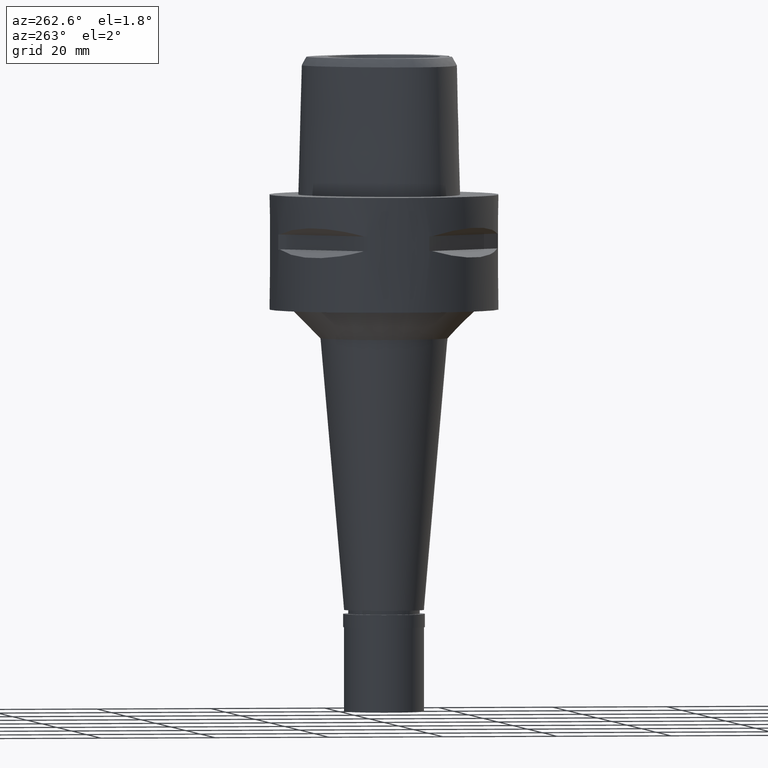
[diagram: clean part render]
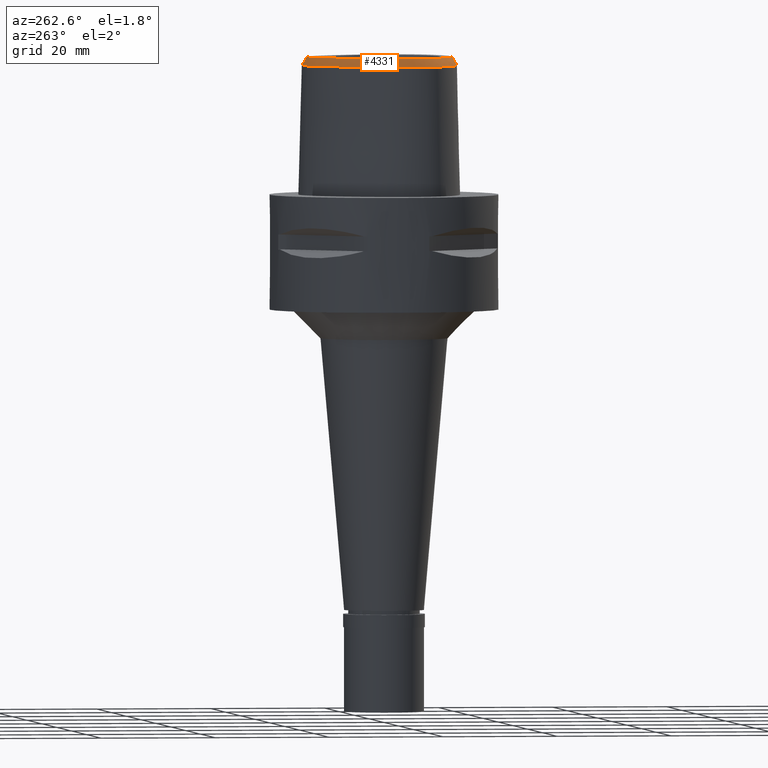
[diagram: same view with one face highlighted and labeled with its STEP entity id]
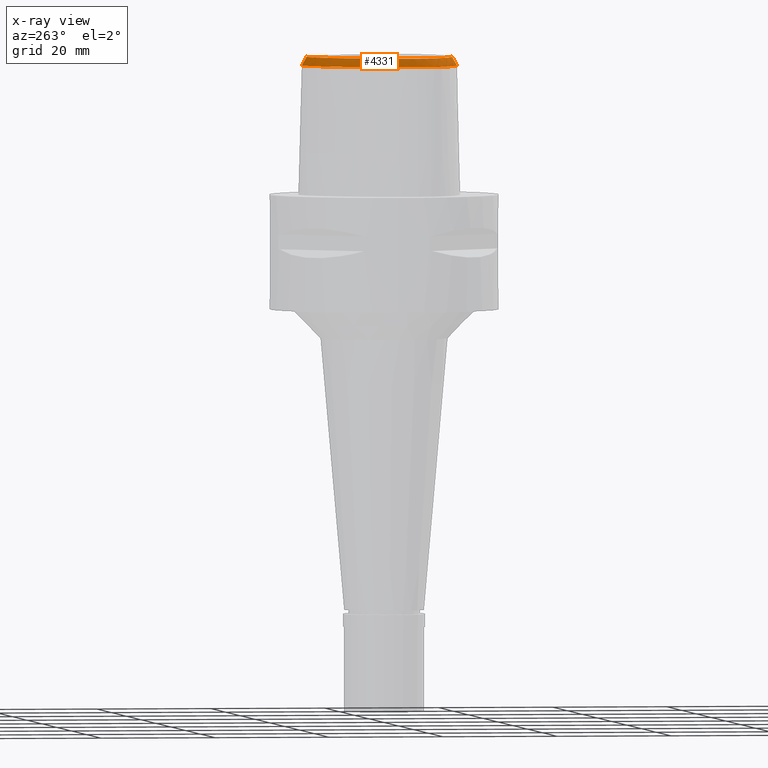
[diagram: x-ray of the same camera — body ghosted, the highlighted face saturated]
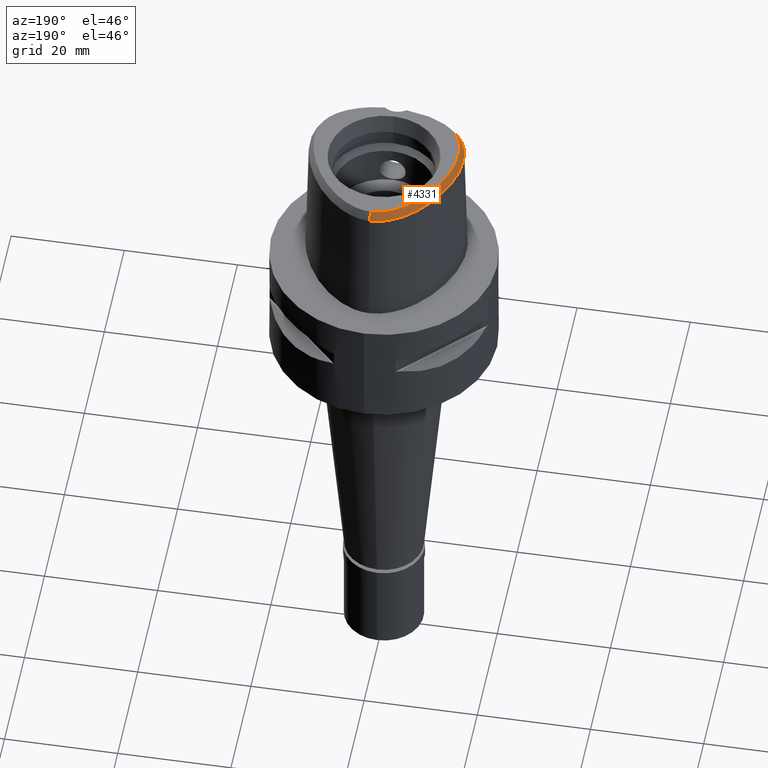
[diagram: same view with one face highlighted and labeled with its STEP entity id]
A machine part, auxiliary view. The second image highlights one B-rep face of the part: STEP entity #4331.
The next image is the same camera in x-ray: the body ghosted, the highlighted face saturated — about 0% of this face is hidden behind the body in this view.
A second angle (auxiliary view) of the same face is appended — the face is thin or edge-on in the first view.
In plain terms, the highlighted face is a freeform B-spline surface patch.
Its self-contained STEP definition (entity closure, byte-faithful):
#14 = CARTESIAN_POINT ( 'NONE',  ( -12.91689615255999968, -4.005728630794000544, 23.55038920272000169 ) ) ;
#30 = CARTESIAN_POINT ( 'NONE',  ( -10.73557940687000034, -8.489851609281000577, 23.55038907707999840 ) ) ;
#48 = CARTESIAN_POINT ( 'NONE',  ( -13.49620532111113391, -4.288887307617305744, 22.52071717950009599 ) ) ;
#52 = CARTESIAN_POINT ( 'NONE',  ( -13.29379043658999926, -5.427288830610999426, 22.39012510022000413 ) ) ;
#72 = CARTESIAN_POINT ( 'NONE',  ( -9.469781699632999761, -10.28825692441000150, 22.39012579534999858 ) ) ;
#92 = CARTESIAN_POINT ( 'NONE',  ( -10.68572801856999988, -9.410055897070000341, 22.39012497827000203 ) ) ;
#115 = CARTESIAN_POINT ( 'NONE',  ( -3.621331178449000099, -11.39559236640000073, 24.13052112445999953 ) ) ;
#123 = CARTESIAN_POINT ( 'NONE',  ( 0.2594542640720999827, 14.14463931645000017, 22.97025717801000155 ) ) ;
#141 = CARTESIAN_POINT ( 'NONE',  ( -2.018258286763999987, -12.25676355477000179, 22.97025772445000058 ) ) ;
#143 = CARTESIAN_POINT ( 'NONE',  ( -4.649494456245604646, 12.01569862248201304, 24.00000000000870770 ) ) ;
#147 = CARTESIAN_POINT ( 'NONE',  ( -0.5346987212134000078, 14.13446518989999845, 22.97025697266999700 ) ) ;
#161 = CARTESIAN_POINT ( 'NONE',  ( -12.25469206170719261, -5.716132091640868218, 24.00000000000425260 ) ) ;
#181 = CARTESIAN_POINT ( 'NONE',  ( -3.312010815206084313, 12.76928825342065643, 24.00000000000392930 ) ) ;
#187 = FACE_OUTER_BOUND ( 'NONE', #1372, .T. ) ;
#208 = CARTESIAN_POINT ( 'NONE',  ( -10.95406941132843492, -7.897563445516607494, 24.00000000000396838 ) ) ;
#212 = CARTESIAN_POINT ( 'NONE',  ( -2.902976913949000259, 13.57500030043000017, 22.97025667935999849 ) ) ;
#225 = CARTESIAN_POINT ( 'NONE',  ( -2.145202358384773689, -11.88058199930474501, 23.61561870660771589 ) ) ;
#235 = CARTESIAN_POINT ( 'NONE',  ( -2.371128645248000044, 14.10602832949999907, 22.39012459494000140 ) ) ;
#262 = CARTESIAN_POINT ( 'NONE',  ( -9.026545955030998769, 7.586230589718999440, 24.13052094538999981 ) ) ;
#287 = CARTESIAN_POINT ( 'NONE',  ( -6.259004304522999718, 11.11932302850000021, 23.55038928608000148 ) ) ;
#306 = CARTESIAN_POINT ( 'NONE',  ( -5.512255212595999154, 11.71834560157999938, 23.55038892139000239 ) ) ;
#325 = CARTESIAN_POINT ( 'NONE',  ( -12.34441932570999967, -7.560196396417000031, 22.39012480669000027 ) ) ;
#351 = CARTESIAN_POINT ( 'NONE',  ( -12.66686390959999997, -5.253351115346999833, 23.55038907752000199 ) ) ;
#372 = CARTESIAN_POINT ( 'NONE',  ( -3.014424021964061673, -12.39773933600387146, 22.52071717950009599 ) ) ;
#375 = CARTESIAN_POINT ( 'NONE',  ( -13.32590371727999923, -2.519785684007000093, 22.97025711291999883 ) ) ;
#386 = CARTESIAN_POINT ( 'NONE',  ( -6.946551618187000727E-11, 14.40001989798000182, 22.52071729252999788 ) ) ;
#397 = CARTESIAN_POINT ( 'NONE',  ( -12.49097388250999963, -4.592465801598999420, 24.13052107588999817 ) ) ;
#411 = B_SPLINE_CURVE_WITH_KNOTS ( 'NONE', 3,
 ( #4462, #1531, #491, #4116, #1935, #826, #1600, #462, #1574, #2955, #558, #2692, #1195, #208, #4093, #3373, #4386, #3049, #161, #3680, #1175, #2587, #2972, #1914, #3752, #4411, #4039, #2996, #2611, #4434, #1893, #4485, #1628, #1223, #1271, #3329, #2645, #4063, #920, #143, #852, #181, #3025, #1247, #2670, #3425, #3071, #1984, #1300 ),
 .UNSPECIFIED., .F., .F.,
 ( 4, 1, 1, 1, 1, 1, 1, 1, 1, 1, 1, 1, 1, 1, 1, 1, 1, 1, 1, 1, 1, 1, 1, 1, 1, 1, 1, 1, 1, 1, 1, 1, 1, 1, 1, 1, 1, 1, 1, 1, 1, 1, 1, 1, 1, 1, 4 ),
 ( 0.0000000000000000000, 0.009873886129200037942, 0.03187668865969994769, 0.05387949119019996846, 0.07588229372080002033, 0.09788509625140007220, 0.1198878987818999819, 0.1418907013124000027, 0.1638935038429000235, 0.1858963063735000754, 0.2078991089039999851, 0.2299019114346000370, 0.2519047139651000577, 0.2739075164956000785, 0.2959103190260999883, 0.3179131215567000401, 0.3399159240872999810, 0.3619187266178000018, 0.3839215291482999115, 0.4059243316788000433, 0.4279271342093999841, 0.4499299367398998939, 0.4719327392704999458, 0.4939355418009000465, 0.5159383443314999873, 0.5379411468621000392, 0.5599439493925999489, 0.5819467519232000008, 0.6039495544535999905, 0.6259523569842000423, 0.6479551595146999521, 0.6699579620453000040, 0.6919607645757999137, 0.7139635671063000455, 0.7359663696367999552, 0.7579691721674000071, 0.7799719746980000590, 0.8019747772284999687, 0.8239775797591000206, 0.8459803822895000103, 0.8679831848201000621, 0.8899859873505999719, 0.9119887898811600557, 0.9339915924116999335, 0.9559943949422300413, 0.9779971974727700301, 1.000000000000000000 ),
 .UNSPECIFIED. ) ;
#418 = CARTESIAN_POINT ( 'NONE',  ( -6.021703609490443476, 12.22251596750958313, 22.52071717950009599 ) ) ;
#422 = CARTESIAN_POINT ( 'NONE',  ( -13.61241537383000022, -1.635317129304999950, 22.39012500792000182 ) ) ;
#438 = CARTESIAN_POINT ( 'NONE',  ( -13.44334616472875332, -0.2854647376912409218, 22.52071717950009599 ) ) ;
#441 = CARTESIAN_POINT ( 'NONE',  ( -10.26853336994000010, -8.910859691284999329, 23.55038904346000095 ) ) ;
#455 = CARTESIAN_POINT ( 'NONE',  ( -12.82590901148203244, -6.531187915556634138, 22.52071717950009599 ) ) ;
#462 = CARTESIAN_POINT ( 'NONE',  ( -7.561120467871441875, -10.28345142432416637, 24.00000000000629541 ) ) ;
#484 = CARTESIAN_POINT ( 'NONE',  ( -1.700144406878999925, -12.28254757893000004, 22.97025773920000091 ) ) ;
#491 = CARTESIAN_POINT ( 'NONE',  ( -2.674008066187574251, -11.60894038318543231, 23.99999999999778311 ) ) ;
#494 = CARTESIAN_POINT ( 'NONE',  ( -0.05472977408874000332, 14.47833780472999798, 22.39012550636999777 ) ) ;
#511 = CARTESIAN_POINT ( 'NONE',  ( -6.801175342872999963, -10.87017341457999997, 23.55038941185999946 ) ) ;
#519 = CARTESIAN_POINT ( 'NONE',  ( -1.523573584765000044, 13.32517203437999953, 24.13052102811999688 ) ) ;
#532 = CARTESIAN_POINT ( 'NONE',  ( -7.931511078031999951, -11.10648330231000003, 22.39012467666999839 ) ) ;
#558 = CARTESIAN_POINT ( 'NONE',  ( -9.587006019867665430, -9.122502708651090586, 23.99999999999997868 ) ) ;
#563 = CARTESIAN_POINT ( 'NONE',  ( -10.63189210382000027, 5.647577708077999858, 23.55038908711000190 ) ) ;
#588 = CARTESIAN_POINT ( 'NONE',  ( -7.552228118048999406, 9.411001838818000564, 24.13052097709000066 ) ) ;
#613 = CARTESIAN_POINT ( 'NONE',  ( -12.30706036795000102, 3.647487044672999890, 22.39012509939000140 ) ) ;
#631 = CARTESIAN_POINT ( 'NONE',  ( -3.420482387832000093, 12.99684645227000068, 23.55039017689999881 ) ) ;
#656 = CARTESIAN_POINT ( 'NONE',  ( -3.280521755221999847, 12.70322860663999975, 24.13052074702000027 ) ) ;
#675 = CARTESIAN_POINT ( 'NONE',  ( -12.18582009569000135, -5.691361238067999651, 24.13052102439999658 ) ) ;
#697 = CARTESIAN_POINT ( 'NONE',  ( -12.01198931645999934, -8.032397562230999100, 22.39012575161999763 ) ) ;
#719 = CARTESIAN_POINT ( 'NONE',  ( -3.539803248252551882, 13.67924950902632908, 22.52071717950009599 ) ) ;
#722 = CARTESIAN_POINT ( 'NONE',  ( -12.79805583329999941, -5.911561163890000969, 22.97025741839999924 ) ) ;
#743 = CARTESIAN_POINT ( 'NONE',  ( -12.73455036606999968, 2.500906730922999976, 22.39012519899000253 ) ) ;
#755 = CARTESIAN_POINT ( 'NONE',  ( -12.06912915254240559, -7.841969072900782933, 22.52071717950009599 ) ) ;
#758 = CARTESIAN_POINT ( 'NONE',  ( -13.10417370210000065, -6.021661126801999941, 22.39012561538999790 ) ) ;
#782 = CARTESIAN_POINT ( 'NONE',  ( -12.68166860123735518, 2.767886241324079677, 22.52071717950009599 ) ) ;
#784 = CARTESIAN_POINT ( 'NONE',  ( -10.96173785637000009, -8.723672774605999436, 22.97025708788000031 ) ) ;
#793 = CARTESIAN_POINT ( 'NONE',  ( -1.597334650417999935, 13.64200731561000168, 23.55038920856000217 ) ) ;
#805 = CARTESIAN_POINT ( 'NONE',  ( -4.736458213768491632, -12.13940339377894695, 22.52071717950009599 ) ) ;
#807 = CARTESIAN_POINT ( 'NONE',  ( -8.954739086803998660, -9.459471398402000020, 24.13052100980999981 ) ) ;
#826 = CARTESIAN_POINT ( 'NONE',  ( -5.772139147996698583, -10.95484250004066062, 24.00000000000051514 ) ) ;
#848 = CARTESIAN_POINT ( 'NONE',  ( -10.11528326233000108, -9.854406487581998775, 22.39012601075999953 ) ) ;
#852 = CARTESIAN_POINT ( 'NONE',  ( -3.965203405002426074, 12.43107680024074213, 24.00000000000078515 ) ) ;
#857 = CARTESIAN_POINT ( 'NONE',  ( -1.093024944136000043, 14.07028295918999916, 22.97025705790000316 ) ) ;
#874 = CARTESIAN_POINT ( 'NONE',  ( -1.522585070594000056, -11.64361910773999931, 24.13052098510999954 ) ) ;
#900 = CARTESIAN_POINT ( 'NONE',  ( -2.665034832249999930, 12.96950803024999921, 24.13052111806999989 ) ) ;
#920 = CARTESIAN_POINT ( 'NONE',  ( -5.360644550568229860, 11.51697883926371446, 24.00000000000236255 ) ) ;
#926 = CARTESIAN_POINT ( 'NONE',  ( -11.50031765273000062, 4.668925267950999825, 22.97025789457000400 ) ) ;
#955 = CARTESIAN_POINT ( 'NONE',  ( -4.408493149500999131, 13.21731188525000000, 22.39013181342000181 ) ) ;
#977 = CARTESIAN_POINT ( 'NONE',  ( -4.609379665371999835, 11.95449901081999933, 24.13052068466999955 ) ) ;
#998 = CARTESIAN_POINT ( 'NONE',  ( -7.023124716592999306, 10.42308900067999922, 23.55038990566000123 ) ) ;
#1020 = CARTESIAN_POINT ( 'NONE',  ( -2.568703252653000479, -12.45023756080000155, 22.52071717950000007 ) ) ;
#1024 = CARTESIAN_POINT ( 'NONE',  ( -13.18665852454999943, -0.7364861514769999173, 22.97025706907999876 ) ) ;
#1042 = CARTESIAN_POINT ( 'NONE',  ( -11.75349225501000028, -7.834881162519999442, 22.97025750553000023 ) ) ;
#1063 = CARTESIAN_POINT ( 'NONE',  ( -11.38514937048999975, -8.281750740230000574, 22.97025721477000104 ) ) ;
#1088 = CARTESIAN_POINT ( 'NONE',  ( -12.96392189426000030, -1.686126341164000175, 23.55038905174000163 ) ) ;
#1110 = CARTESIAN_POINT ( 'NONE',  ( -13.01362516153000115, 0.2519059986234999937, 22.97025946772000182 ) ) ;
#1128 = CARTESIAN_POINT ( 'NONE',  ( -11.18789630585999895, -8.957493939931000071, 22.39012509866999778 ) ) ;
#1153 = CARTESIAN_POINT ( 'NONE',  ( -9.734544948727998914, -9.326911096693999426, 23.55038933181999994 ) ) ;
#1171 = CARTESIAN_POINT ( 'NONE',  ( -11.42690036616687088, -8.639965951773906028, 22.52071717950009599 ) ) ;
#1173 = CARTESIAN_POINT ( 'NONE',  ( -4.725144032494999813, -11.16498997077000155, 24.13052083658999791 ) ) ;
#1175 = CARTESIAN_POINT ( 'NONE',  ( -12.56273685367071380, -4.606827092194988538, 24.00000000000191847 ) ) ;
#1191 = CARTESIAN_POINT ( 'NONE',  ( -5.750775950445000007, -10.88486226082999941, 24.13052071816000321 ) ) ;
#1195 = CARTESIAN_POINT ( 'NONE',  ( -10.56030324369156226, -8.308636727330476646, 23.99999999999994671 ) ) ;
#1200 = CARTESIAN_POINT ( 'NONE',  ( -1.043222542498999816, 13.74879961953999974, 23.55038906400000087 ) ) ;
#1217 = CARTESIAN_POINT ( 'NONE',  ( -3.678012494620999995, -11.71581499487999878, 23.55038887673000048 ) ) ;
#1223 = CARTESIAN_POINT ( 'NONE',  ( -9.086067383144444065, 7.628776179867598373, 24.00000000000212452 ) ) ;
#1247 = CARTESIAN_POINT ( 'NONE',  ( -2.102339319505448056, 13.24427330329825558, 24.00000000000049027 ) ) ;
#1252 = CARTESIAN_POINT ( 'NONE',  ( -7.476353473284999218, 10.88960170228999935, 22.39012806545999723 ) ) ;
#1271 = CARTESIAN_POINT ( 'NONE',  ( -8.357232578962364045, 8.586563883648445028, 24.00000000000749623 ) ) ;
#1275 = CARTESIAN_POINT ( 'NONE',  ( -11.20140280495999896, 5.961674448596999909, 22.39012513453000253 ) ) ;
#1288 = ORIENTED_EDGE ( 'NONE', *, *, #1446, .F. ) ;
#1300 = CARTESIAN_POINT ( 'NONE',  ( -1.335434154418999929E-10, 13.57127880780999796, 24.00000000000000000 ) ) ;
#1307 = CARTESIAN_POINT ( 'NONE',  ( -8.806283535664000794, 8.949262491124001073, 22.97025691294999916 ) ) ;
#1334 = CARTESIAN_POINT ( 'NONE',  ( -12.11876203604000146, 2.291548344621999966, 23.55038910509999894 ) ) ;
#1356 = CARTESIAN_POINT ( 'NONE',  ( -2.080547148341000074, 13.17440626903000123, 24.13052110713000076 ) ) ;
#1372 = EDGE_LOOP ( 'NONE', ( #1621, #1288, #1723, #3205 ) ) ;
#1378 = CARTESIAN_POINT ( 'NONE',  ( -12.69527316021999930, 0.1854320980418000253, 23.55039011617999734 ) ) ;
#1403 = CARTESIAN_POINT ( 'NONE',  ( -11.49499519355000032, -7.637364762809999874, 23.55038925945000017 ) ) ;
#1427 = CARTESIAN_POINT ( 'NONE',  ( -12.49193796448999905, -5.801461200979000310, 23.55038922139999968 ) ) ;
#1446 = EDGE_CURVE ( 'NONE', #1563, #4221, #3606, .T. ) ;
#1449 = CARTESIAN_POINT ( 'NONE',  ( -11.79872620925000071, -7.205816340002000331, 23.55038899554000054 ) ) ;
#1465 = CARTESIAN_POINT ( 'NONE',  ( -6.946551618187000727E-11, 14.40001989798000182, 22.52071729252999788 ) ) ;
#1467 = CARTESIAN_POINT ( 'NONE',  ( -11.77163391964000105, -6.615736029525999484, 24.13052105050999785 ) ) ;
#1504 = CARTESIAN_POINT ( 'NONE',  ( -2.747055796328999655, -12.18137458420999941, 22.97025747561999864 ) ) ;
#1527 = CARTESIAN_POINT ( 'NONE',  ( -8.743617094457999173, -10.70733443268999885, 22.39012517583000061 ) ) ;
#1531 = CARTESIAN_POINT ( 'NONE',  ( -2.090687641573881539, -11.66928185012532815, 23.99999999999819522 ) ) ;
#1547 = CARTESIAN_POINT ( 'NONE',  ( -2.377475776531321472, -12.13328147874956109, 23.12252443310771355 ) ) ;
#1563 = VERTEX_POINT ( 'NONE', #2855 ) ;
#1570 = CARTESIAN_POINT ( 'NONE',  ( -7.531090943626000289, -10.21672388033000090, 24.13052110050999843 ) ) ;
#1574 = CARTESIAN_POINT ( 'NONE',  ( -8.320010339569014590, -9.910347637800986931, 24.00000000000661515 ) ) ;
#1596 = B_SPLINE_SURFACE_WITH_KNOTS ( 'NONE', 3, 3, ( 
 ( #4066, #1607, #2288, #3733 ),
 ( #2235, #3304, #123, #2959 ),
 ( #4389, #4001, #3683, #494 ),
 ( #3334, #3030, #147, #2977 ),
 ( #2547, #1200, #857, #3711 ),
 ( #519, #793, #2057, #3132 ),
 ( #1356, #3053, #4175, #235 ),
 ( #900, #2387, #212, #1724 ),
 ( #656, #631, #1683, #3507 ),
 ( #4488, #2774, #3483, #955 ),
 ( #977, #1656, #2339, #2035 ),
 ( #3076, #306, #4213, #3152 ),
 ( #1705, #287, #4538, #4559 ),
 ( #3456, #998, #3788, #1252 ),
 ( #588, #2673, #2412, #2011 ),
 ( #4195, #3832, #1307, #1632 ),
 ( #262, #1989, #2727, #3858 ),
 ( #2754, #4121, #3756, #2696 ),
 ( #2312, #563, #1966, #1275 ),
 ( #3406, #4146, #926, #3431 ),
 ( #4510, #2361, #3807, #613 ),
 ( #3108, #1334, #3198, #743 ),
 ( #3597, #2147, #2844, #2101 ),
 ( #4237, #1378, #1110, #4301 ),
 ( #3174, #2128, #1024, #2827 ),
 ( #2435, #1088, #3527, #422 ),
 ( #3969, #3950, #375, #2452 ),
 ( #3879, #1829, #2503, #3576 ),
 ( #3554, #14, #2891, #2800 ),
 ( #397, #4326, #2521, #4604 ),
 ( #1808, #351, #4579, #52 ),
 ( #675, #1427, #722, #758 ),
 ( #3899, #2163, #2869, #1789 ),
 ( #1467, #4276, #3614, #4256 ),
 ( #3239, #1449, #2077, #325 ),
 ( #1743, #1403, #1042, #697 ),
 ( #2473, #1766, #1063, #3926 ),
 ( #3219, #30, #784, #1128 ),
 ( #2952, #441, #2540, #92 ),
 ( #4059, #1153, #2255, #848 ),
 ( #807, #4430, #2907, #72 ),
 ( #4384, #3349, #1848, #1527 ),
 ( #1570, #3725, #4036, #532 ),
 ( #3323, #511, #2925, #4344 ),
 ( #1191, #3991, #2188, #2562 ),
 ( #1173, #1863, #1890, #3276 ),
 ( #115, #1217, #3297, #3676 ),
 ( #2584, #3639, #1504, #1911 ),
 ( #4363, #2279, #141, #4015 ),
 ( #2207, #3655, #484, #2606 ),
 ( #874, #3703, #2229, #4088 ) ),
 .UNSPECIFIED., .F., .F., .F.,
 ( 4, 1, 1, 1, 1, 1, 1, 1, 1, 1, 1, 1, 1, 1, 1, 1, 1, 1, 1, 1, 1, 1, 1, 1, 1, 1, 1, 1, 1, 1, 1, 1, 1, 1, 1, 1, 1, 1, 1, 1, 1, 1, 1, 1, 1, 1, 1, 1, 4 ),
 ( 4, 4 ),
 ( -0.01579924575333999798, 0.0000000000000000000, 0.02200280252723000110, 0.04400560505777000031, 0.06600840758830001098, 0.08801121011883999978, 0.1100140126494000004, 0.1320168151798999934, 0.1540196177104999897, 0.1760224202409000072, 0.1980252227715000035, 0.2200280253019999965, 0.2420308278325999929, 0.2640336303632000448, 0.2860364328937000100, 0.3080392354242000308, 0.3300420379546999960, 0.3520448404853000479, 0.3740476430157999577, 0.3960504455463999540, 0.4180532480767999992, 0.4400560506073999956, 0.4620588531379000163, 0.4840616556684999572, 0.5060644581990999535, 0.5280672607295000542, 0.5500700632601001061, 0.5720728657906000159, 0.5940756683211999567, 0.6160784708517000885, 0.6380812733821999982, 0.6600840759127000190, 0.6820868784432999599, 0.7040896809739000117, 0.7260924835043999215, 0.7480952860348999423, 0.7700980885653999630, 0.7921008910960000149, 0.8141036936264999246, 0.8361064961570999765, 0.8581092986875999973, 0.8801121012181000181, 0.9021149037485999278, 0.9241177062791999797, 0.9461205088098000315, 0.9681233113403000523, 0.9901261138707999621, 1.000000000000000000, 1.006872802233000019 ),
 ( -0.06560824655187999510, 1.065653435235000002 ),
 .UNSPECIFIED. ) ;
#1600 = CARTESIAN_POINT ( 'NONE',  ( -6.712679994719877641, -10.63416489131312659, 24.00000000001210765 ) ) ;
#1607 = CARTESIAN_POINT ( 'NONE',  ( 0.3755884573078000499, 13.81322689747999988, 23.55038901832000064 ) ) ;
#1621 = ORIENTED_EDGE ( 'NONE', *, *, #2354, .T. ) ;
#1628 = CARTESIAN_POINT ( 'NONE',  ( -9.776246037420351698, 6.601694411329492418, 24.00000000000850875 ) ) ;
#1632 = CARTESIAN_POINT ( 'NONE',  ( -9.059267869616999036, 9.153598022022000791, 22.39012482518000269 ) ) ;
#1656 = CARTESIAN_POINT ( 'NONE',  ( -4.787679414888999396, 12.22651527196000032, 23.55039039169999882 ) ) ;
#1683 = CARTESIAN_POINT ( 'NONE',  ( -3.560443020442999540, 13.29046429788999895, 22.97025960678000089 ) ) ;
#1705 = CARTESIAN_POINT ( 'NONE',  ( -6.047269996519998969, 10.87246714189999963, 24.13052100562000035 ) ) ;
#1723 = ORIENTED_EDGE ( 'NONE', *, *, #2920, .F. ) ;
#1724 = CARTESIAN_POINT ( 'NONE',  ( -3.021947954798000158, 13.87774643552000065, 22.39012445999999912 ) ) ;
#1743 = CARTESIAN_POINT ( 'NONE',  ( -11.23649813209000037, -7.439848363099000217, 24.13052101335999922 ) ) ;
#1766 = CARTESIAN_POINT ( 'NONE',  ( -11.14228945732999954, -8.065309008137999669, 23.55038913249000032 ) ) ;
#1786 = CARTESIAN_POINT ( 'NONE',  ( -2.568703252653000479, -12.45023756080000155, 22.52071717950000007 ) ) ;
#1789 = CARTESIAN_POINT ( 'NONE',  ( -12.88151079762000073, -6.572721333509000452, 22.39012527542999820 ) ) ;
#1808 = CARTESIAN_POINT ( 'NONE',  ( -12.35340064610000077, -5.166382257715999238, 24.13052106616999737 ) ) ;
#1829 = CARTESIAN_POINT ( 'NONE',  ( -12.98260992984999973, -3.295869790979000236, 23.55038938246999791 ) ) ;
#1848 = CARTESIAN_POINT ( 'NONE',  ( -8.590966830047999991, -10.42013352390999970, 22.97025713723999729 ) ) ;
#1863 = CARTESIAN_POINT ( 'NONE',  ( -4.800926594308999817, -11.48124356944999924, 23.55038986837000081 ) ) ;
#1890 = CARTESIAN_POINT ( 'NONE',  ( -4.876709156123999911, -11.79749716813000049, 22.97025890013999927 ) ) ;
#1893 = CARTESIAN_POINT ( 'NONE',  ( -10.97950574081230535, 4.420048049595853179, 24.00000000000877165 ) ) ;
#1908 = CARTESIAN_POINT ( 'NONE',  ( -2.568703252653000479, -12.45023756080000155, 22.52071717950000007 ) ) ;
#1911 = CARTESIAN_POINT ( 'NONE',  ( -2.788209102163999642, -12.50387002247000012, 22.39012570486000087 ) ) ;
#1914 = CARTESIAN_POINT ( 'NONE',  ( -12.74861612880535766, -2.526660231389460165, 24.00000000001223910 ) ) ;
#1935 = CARTESIAN_POINT ( 'NONE',  ( -4.742193981399983826, -11.23614232520928091, 24.00000000000717648 ) ) ;
#1966 = CARTESIAN_POINT ( 'NONE',  ( -10.91664745439000050, 5.804626078337000727, 22.97025711082000043 ) ) ;
#1984 = CARTESIAN_POINT ( 'NONE',  ( -0.1649659295968815553, 13.57127880779958851, 24.00000000000551381 ) ) ;
#1989 = CARTESIAN_POINT ( 'NONE',  ( -9.291103129389998827, 7.775334606002000548, 23.55038949356000089 ) ) ;
#2011 = CARTESIAN_POINT ( 'NONE',  ( -8.273245857719999208, 10.06823477092000019, 22.39012619892000089 ) ) ;
#2035 = CARTESIAN_POINT ( 'NONE',  ( -5.144278913925000474, 12.77054779424999964, 22.39012980577999912 ) ) ;
#2057 = CARTESIAN_POINT ( 'NONE',  ( -1.671095716071000048, 13.95884259682999939, 22.97025738898999947 ) ) ;
#2077 = CARTESIAN_POINT ( 'NONE',  ( -12.07157276747999930, -7.383006368210001114, 22.97025690111999907 ) ) ;
#2101 = CARTESIAN_POINT ( 'NONE',  ( -13.07543366182000000, 1.386436168884999987, 22.39012914491999950 ) ) ;
#2125 = CARTESIAN_POINT ( 'NONE',  ( -0.5039711950876220037, 14.40001990035042034, 22.52071717950009244 ) ) ;
#2128 = CARTESIAN_POINT ( 'NONE',  ( -12.86474258414000005, -0.7827894408407000126, 23.55038906888000128 ) ) ;
#2144 = CARTESIAN_POINT ( 'NONE',  ( -9.075996546496417849, -10.47368666962651496, 22.52071717950009599 ) ) ;
#2147 = CARTESIAN_POINT ( 'NONE',  ( -12.44813067247000049, 1.214579351180999911, 23.55039020713000042 ) ) ;
#2163 = CARTESIAN_POINT ( 'NONE',  ( -12.28770537913000105, -6.306754843174999792, 23.55038912646000071 ) ) ;
#2188 = CARTESIAN_POINT ( 'NONE',  ( -5.940683597445000075, -11.50694996716000063, 22.97025983444000019 ) ) ;
#2205 = CARTESIAN_POINT ( 'NONE',  ( -13.19588017073914266, -5.576003004572067212, 22.52071717950009599 ) ) ;
#2207 = CARTESIAN_POINT ( 'NONE',  ( -1.649618772199000105, -11.63448570839000062, 24.13052098372999765 ) ) ;
#2229 = CARTESIAN_POINT ( 'NONE',  ( -1.569185682592999953, -12.29196304801999950, 22.97025772833000090 ) ) ;
#2235 = CARTESIAN_POINT ( 'NONE',  ( 0.2354694207985000010, 13.49495979771999998, 24.13052105486999821 ) ) ;
#2255 = CARTESIAN_POINT ( 'NONE',  ( -9.924914105530998398, -9.590658792137999100, 22.97025767128999973 ) ) ;
#2279 = CARTESIAN_POINT ( 'NONE',  ( -1.988208977008000033, -11.93312022350999868, 23.55038935502999919 ) ) ;
#2288 = CARTESIAN_POINT ( 'NONE',  ( 0.3934966534366000079, 14.13772535562999977, 22.97025695327999628 ) ) ;
#2312 = CARTESIAN_POINT ( 'NONE',  ( -10.34713675323999915, 5.490529337817998901, 24.13052106338999891 ) ) ;
#2339 = CARTESIAN_POINT ( 'NONE',  ( -4.965979164406999935, 12.49853153311000042, 22.97026009873999897 ) ) ;
#2354 = EDGE_CURVE ( 'NONE', #3720, #4221, #411, .T. ) ;
#2361 = CARTESIAN_POINT ( 'NONE',  ( -11.70480535034000091, 3.401924666388000063, 23.55038907729000286 ) ) ;
#2387 = CARTESIAN_POINT ( 'NONE',  ( -2.784005873099999917, 13.27225416533999969, 23.55038889872000141 ) ) ;
#2412 = CARTESIAN_POINT ( 'NONE',  ( -8.032906611162999866, 9.849157126886000313, 22.97025779164000170 ) ) ;
#2435 = CARTESIAN_POINT ( 'NONE',  ( -12.63967515446999990, -1.711530947093999888, 24.13052107364999799 ) ) ;
#2452 = CARTESIAN_POINT ( 'NONE',  ( -13.65113343540000024, -2.515912732028999788, 22.39012513782000369 ) ) ;
#2473 = CARTESIAN_POINT ( 'NONE',  ( -10.89942954416999932, -7.848867276045000452, 24.13052105020999960 ) ) ;
#2503 = CARTESIAN_POINT ( 'NONE',  ( -13.30736251515999946, -3.314133812316999883, 22.97025778729000223 ) ) ;
#2521 = CARTESIAN_POINT ( 'NONE',  ( -13.12890914299999956, -4.720130159819999172, 22.97025701215000026 ) ) ;
#2540 = CARTESIAN_POINT ( 'NONE',  ( -10.47713069425999954, -9.160457794177998991, 22.97025701087000016 ) ) ;
#2547 = CARTESIAN_POINT ( 'NONE',  ( -0.9934201408627000296, 13.42731627989999943, 24.13052107009999858 ) ) ;
#2562 = CARTESIAN_POINT ( 'NONE',  ( -6.035637420945000109, -11.81799382033000079, 22.39012939257999690 ) ) ;
#2582 = CARTESIAN_POINT ( 'NONE',  ( -13.60847657048531723, -2.623199557594281028, 22.52071717950009599 ) ) ;
#2584 = CARTESIAN_POINT ( 'NONE',  ( -2.664749184658000036, -11.53638370770999977, 24.13052101714000131 ) ) ;
#2587 = CARTESIAN_POINT ( 'NONE',  ( -12.66679745937387658, -3.974058027850810859, 24.00000000000986589 ) ) ;
#2606 = CARTESIAN_POINT ( 'NONE',  ( -1.725407224218999946, -12.60657851420000064, 22.39012611694000299 ) ) ;
#2611 = CARTESIAN_POINT ( 'NONE',  ( -11.88013947725839969, 2.210420412498795173, 24.00000000000299849 ) ) ;
#2645 = CARTESIAN_POINT ( 'NONE',  ( -6.847495201775545048, 10.24231185838277902, 24.00000000000362732 ) ) ;
#2670 = CARTESIAN_POINT ( 'NONE',  ( -1.540168727109835656, 13.39645525873851462, 23.99999999999834088 ) ) ;
#2673 = CARTESIAN_POINT ( 'NONE',  ( -7.792567364605999636, 9.630079482851998662, 23.55038938436999985 ) ) ;
#2688 = CARTESIAN_POINT ( 'NONE',  ( -1.908902231482000111, -11.68567671431999955, 24.00000000000000000 ) ) ;
#2690 = VERTEX_POINT ( 'NONE', #1020 ) ;
#2692 = CARTESIAN_POINT ( 'NONE',  ( -10.10686734005285103, -8.717417447989452839, 24.00000000000783373 ) ) ;
#2696 = CARTESIAN_POINT ( 'NONE',  ( -10.53972617743999862, 7.082784187522000785, 22.39012580269000097 ) ) ;
#2727 = CARTESIAN_POINT ( 'NONE',  ( -9.555660303749998974, 7.964438622285000768, 22.97025804172000107 ) ) ;
#2754 = CARTESIAN_POINT ( 'NONE',  ( -9.714346667547999914, 6.562689920658999476, 24.13052100921999710 ) ) ;
#2774 = CARTESIAN_POINT ( 'NONE',  ( -4.089006758281000131, 12.65065900622999884, 23.55039095240000080 ) ) ;
#2800 = CARTESIAN_POINT ( 'NONE',  ( -13.56229974477999889, -4.087457650034999723, 22.39012554849999859 ) ) ;
#2827 = CARTESIAN_POINT ( 'NONE',  ( -13.50857446496000058, -0.6901828621133000441, 22.39012506929000068 ) ) ;
#2844 = CARTESIAN_POINT ( 'NONE',  ( -12.76178216714999891, 1.300507760033000171, 22.97025967603000041 ) ) ;
#2855 = CARTESIAN_POINT ( 'NONE',  ( -6.946551618187000727E-11, 14.40001989798000182, 22.52071729252999788 ) ) ;
#2869 = CARTESIAN_POINT ( 'NONE',  ( -12.58460808836999867, -6.439738088341999678, 22.97025720094000079 ) ) ;
#2883 = DIRECTION ( 'NONE',  ( -3.779049751668984788E-11, -0.4887572544032980359, 0.8724198222576960982 ) ) ;
#2891 = CARTESIAN_POINT ( 'NONE',  ( -13.23959794867000106, -4.046593140414000089, 22.97025737561000369 ) ) ;
#2905 = CARTESIAN_POINT ( 'NONE',  ( -12.48241503205640157, -7.206725678149306091, 22.52071717950009599 ) ) ;
#2907 = CARTESIAN_POINT ( 'NONE',  ( -9.298100828689999986, -10.01199508240999947, 22.97025753351000077 ) ) ;
#2920 = EDGE_CURVE ( 'NONE', #2690, #1563, #3474, .T. ) ;
#2925 = CARTESIAN_POINT ( 'NONE',  ( -6.915360696791999828, -11.17469469529000037, 22.97025785460000336 ) ) ;
#2952 = CARTESIAN_POINT ( 'NONE',  ( -10.05993604561999888, -8.661261588392999755, 24.13052107605999552 ) ) ;
#2955 = CARTESIAN_POINT ( 'NONE',  ( -8.993364728475006231, -9.521626202591734867, 24.00000000000454037 ) ) ;
#2959 = CARTESIAN_POINT ( 'NONE',  ( 0.2714466857089999907, 14.46947907580999981, 22.39012523957000056 ) ) ;
#2972 = CARTESIAN_POINT ( 'NONE',  ( -12.73092184452195674, -3.281714902708266379, 24.00000000000276046 ) ) ;
#2977 = CARTESIAN_POINT ( 'NONE',  ( -0.5598706276492999567, 14.45881985759000088, 22.39012491854999709 ) ) ;
#2996 = CARTESIAN_POINT ( 'NONE',  ( -12.20504609755164083, 1.147983555866235905, 24.00000000000074962 ) ) ;
#3025 = CARTESIAN_POINT ( 'NONE',  ( -2.691801546374031684, 13.03762140634739275, 24.00000000000154543 ) ) ;
#3030 = CARTESIAN_POINT ( 'NONE',  ( -0.5095268147773999168, 13.81011052220999957, 23.55038902679000046 ) ) ;
#3039 = CARTESIAN_POINT ( 'NONE',  ( -1.908902231482000111, -11.68567671431999955, 24.00000000000000000 ) ) ;
#3049 = CARTESIAN_POINT ( 'NONE',  ( -12.05760136210250799, -6.203690849627904846, 24.00000000001118039 ) ) ;
#3053 = CARTESIAN_POINT ( 'NONE',  ( -2.177407647309999916, 13.48494695584999903, 23.55038893640000097 ) ) ;
#3071 = CARTESIAN_POINT ( 'NONE',  ( -0.4900182128076595589, 13.55873082896230386, 24.00000000000808598 ) ) ;
#3076 = CARTESIAN_POINT ( 'NONE',  ( -5.316632307403999391, 11.45852250915000070, 24.13052111149000112 ) ) ;
#3108 = CARTESIAN_POINT ( 'NONE',  ( -11.81086787101999924, 2.186869151470999917, 24.13052105815999937 ) ) ;
#3132 = CARTESIAN_POINT ( 'NONE',  ( -1.744856781725000028, 14.27567787805999977, 22.39012556942000032 ) ) ;
#3152 = CARTESIAN_POINT ( 'NONE',  ( -5.903501022981000546, 12.23799178644000030, 22.39012454118000051 ) ) ;
#3174 = CARTESIAN_POINT ( 'NONE',  ( -12.54282664373000067, -0.8290927302043999969, 24.13052106866999935 ) ) ;
#3198 = CARTESIAN_POINT ( 'NONE',  ( -12.42665620105000102, 2.396227537771999927, 22.97025715203999852 ) ) ;
#3205 = ORIENTED_EDGE ( 'NONE', *, *, #3965, .F. ) ;
#3215 = CARTESIAN_POINT ( 'NONE',  ( -10.46238780241939281, -9.543613000371241384, 22.52071717950009599 ) ) ;
#3219 = CARTESIAN_POINT ( 'NONE',  ( -10.50942095737000059, -8.256030443954998077, 24.13052106629000093 ) ) ;
#3239 = CARTESIAN_POINT ( 'NONE',  ( -11.52587965100999945, -7.028626311793999548, 24.13052108996999934 ) ) ;
#3276 = CARTESIAN_POINT ( 'NONE',  ( -4.952491717937999915, -12.11375076681999907, 22.39012793191000128 ) ) ;
#3293 = CARTESIAN_POINT ( 'NONE',  ( -8.737913808019980522, 9.598635897784784987, 22.52071717950009599 ) ) ;
#3297 = CARTESIAN_POINT ( 'NONE',  ( -3.734693810793999980, -12.03603762336000038, 22.97025662900999876 ) ) ;
#3304 = CARTESIAN_POINT ( 'NONE',  ( 0.2474618424353000057, 13.81979955707999963, 23.55038911643999811 ) ) ;
#3323 = CARTESIAN_POINT ( 'NONE',  ( -6.686989988953000008, -10.56565213386000046, 24.13052096912000266 ) ) ;
#3329 = CARTESIAN_POINT ( 'NONE',  ( -7.606300872724576223, 9.460291049258893636, 24.00000000000397549 ) ) ;
#3334 = CARTESIAN_POINT ( 'NONE',  ( -0.4843549083414999679, 13.48575585452999981, 24.13052108089999592 ) ) ;
#3349 = CARTESIAN_POINT ( 'NONE',  ( -8.438316565638000810, -10.13293261511999965, 23.55038909864000019 ) ) ;
#3357 = CARTESIAN_POINT ( 'NONE',  ( -1.335434154418999929E-10, 13.57127880780999796, 24.00000000000000000 ) ) ;
#3373 = CARTESIAN_POINT ( 'NONE',  ( -11.58726606716591689, -7.068491431883646037, 24.00000000000700950 ) ) ;
#3406 = CARTESIAN_POINT ( 'NONE',  ( -10.91349224824000075, 4.388502583700999438, 24.13052096405000313 ) ) ;
#3425 = CARTESIAN_POINT ( 'NONE',  ( -1.004624940264025934, 13.49964524824664558, 24.00000000000978417 ) ) ;
#3431 = CARTESIAN_POINT ( 'NONE',  ( -11.79373035498000100, 4.809136610076000018, 22.39012635982999910 ) ) ;
#3456 = CARTESIAN_POINT ( 'NONE',  ( -6.796510338247000682, 10.18983264987000048, 24.13052082575999790 ) ) ;
#3474 = B_SPLINE_CURVE_WITH_KNOTS ( 'NONE', 3,
 ( #1786, #372, #805, #3987, #2144, #3215, #1171, #755, #2905, #455, #2205, #48, #2582, #438, #782, #3612, #3293, #418, #719, #3594, #2125, #1465 ),
 .UNSPECIFIED., .F., .F.,
 ( 4, 1, 1, 1, 1, 1, 1, 1, 1, 1, 1, 1, 1, 1, 1, 1, 1, 1, 1, 4 ),
 ( 0.0000000000000000000, 0.03040433083237776071, 0.1185493916655191021, 0.1626219220820368794, 0.2066944524986604470, 0.2507669829152840424, 0.2728032481234900497, 0.2948395133318018058, 0.3168757785401136173, 0.3389120437484253734, 0.3829845741650489410, 0.4270571045815667044, 0.4711296349980844678, 0.5592746958312257988, 0.6474197566644729340, 0.7355648174976142650, 0.8237098783306499028, 0.9118549391638863799, 0.9559274695804570454, 1.000000000000000000 ),
 .UNSPECIFIED. ) ;
#3483 = CARTESIAN_POINT ( 'NONE',  ( -4.248749953891000075, 12.93398544574000120, 22.97026138290999597 ) ) ;
#3487 = B_SPLINE_CURVE_WITH_KNOTS ( 'NONE', 3,
 ( #2688, #225, #1547, #1908 ),
 .UNSPECIFIED., .F., .F.,
 ( 4, 4 ),
 ( 0.0000000000000000000, 1.000000000000000000 ),
 .UNSPECIFIED. ) ;
#3507 = CARTESIAN_POINT ( 'NONE',  ( -3.700403653053000230, 13.58408214351999987, 22.39012903667000032 ) ) ;
#3527 = CARTESIAN_POINT ( 'NONE',  ( -13.28816863404999893, -1.660721735235000107, 22.97025702983000173 ) ) ;
#3554 = CARTESIAN_POINT ( 'NONE',  ( -12.59419435645000185, -3.964864121174000111, 24.13052102982999969 ) ) ;
#3576 = CARTESIAN_POINT ( 'NONE',  ( -13.63211510047000097, -3.332397833653999886, 22.39012619212000033 ) ) ;
#3594 = CARTESIAN_POINT ( 'NONE',  ( -1.515894611543026071, 14.29262276282678457, 22.52071717950009599 ) ) ;
#3597 = CARTESIAN_POINT ( 'NONE',  ( -12.13447917780000118, 1.128650942329000095, 24.13052073824000132 ) ) ;
#3606 = LINE ( 'NONE', #386, #4440 ) ;
#3612 = CARTESIAN_POINT ( 'NONE',  ( -11.01301038052947234, 6.358384390486166104, 22.52071717950009599 ) ) ;
#3614 = CARTESIAN_POINT ( 'NONE',  ( -12.34325950457000154, -6.926568570771999056, 22.97025721245000085 ) ) ;
#3639 = CARTESIAN_POINT ( 'NONE',  ( -2.705902490493000023, -11.85887914595999959, 23.55038924637999997 ) ) ;
#3655 = CARTESIAN_POINT ( 'NONE',  ( -1.674881589539000126, -11.95851664365999945, 23.55038936146999617 ) ) ;
#3676 = CARTESIAN_POINT ( 'NONE',  ( -3.791375126965999875, -12.35626025184000198, 22.39012438127999971 ) ) ;
#3680 = CARTESIAN_POINT ( 'NONE',  ( -12.42392521663859917, -5.185948956748589467, 24.00000000000577316 ) ) ;
#3683 = CARTESIAN_POINT ( 'NONE',  ( -0.05239943491026999994, 14.15309489238000040, 22.97025734866000235 ) ) ;
#3703 = CARTESIAN_POINT ( 'NONE',  ( -1.545885376593999716, -11.96779107788000118, 23.55038935672000022 ) ) ;
#3711 = CARTESIAN_POINT ( 'NONE',  ( -1.142827345773000047, 14.39176629882999947, 22.39012505179999835 ) ) ;
#3720 = VERTEX_POINT ( 'NONE', #3039 ) ;
#3725 = CARTESIAN_POINT ( 'NONE',  ( -7.664564321761000443, -10.51331035431999794, 23.55038895922999842 ) ) ;
#3733 = CARTESIAN_POINT ( 'NONE',  ( 0.4114048495654999971, 14.46222381377000055, 22.39012488823999902 ) ) ;
#3752 = CARTESIAN_POINT ( 'NONE',  ( -12.71262584673599250, -1.705815288732921875, 24.00000000000276756 ) ) ;
#3756 = CARTESIAN_POINT ( 'NONE',  ( -10.26459967413999941, 6.909419431901000053, 22.97025753819999849 ) ) ;
#3788 = CARTESIAN_POINT ( 'NONE',  ( -7.249739094938999706, 10.65634535149000151, 22.97025898555999746 ) ) ;
#3807 = CARTESIAN_POINT ( 'NONE',  ( -12.00593285915000052, 3.524705855530000154, 22.97025708833999857 ) ) ;
#3832 = CARTESIAN_POINT ( 'NONE',  ( -8.553299201710999000, 8.744926960225999579, 23.55038900071000185 ) ) ;
#3858 = CARTESIAN_POINT ( 'NONE',  ( -9.820217478110000897, 8.153542638569000189, 22.39012658987999771 ) ) ;
#3879 = CARTESIAN_POINT ( 'NONE',  ( -12.65785734454000000, -3.277605769641999789, 24.13052097763999981 ) ) ;
#3899 = CARTESIAN_POINT ( 'NONE',  ( -11.99080266987999899, -6.173771598007999906, 24.13052105196999975 ) ) ;
#3926 = CARTESIAN_POINT ( 'NONE',  ( -11.62800928365000175, -8.498192472322999791, 22.39012529704999821 ) ) ;
#3950 = CARTESIAN_POINT ( 'NONE',  ( -13.00067399915999822, -2.523658635984999510, 23.55038908802000108 ) ) ;
#3965 = EDGE_CURVE ( 'NONE', #3720, #2690, #3487, .T. ) ;
#3969 = CARTESIAN_POINT ( 'NONE',  ( -12.67544428103999898, -2.527531587961999726, 24.13052106313000067 ) ) ;
#3987 = CARTESIAN_POINT ( 'NONE',  ( -6.968888528385980052, -11.49954675418853434, 22.52071717950009599 ) ) ;
#3991 = CARTESIAN_POINT ( 'NONE',  ( -5.845729773945000041, -11.19590611400000135, 23.55039027629999993 ) ) ;
#4001 = CARTESIAN_POINT ( 'NONE',  ( -0.05006909573180999551, 13.82785198002000016, 23.55038919094999983 ) ) ;
#4015 = CARTESIAN_POINT ( 'NONE',  ( -2.048307596519999496, -12.58040688602999957, 22.39012609387999930 ) ) ;
#4036 = CARTESIAN_POINT ( 'NONE',  ( -7.798037699895999708, -10.80989682831000032, 22.97025681795000196 ) ) ;
#4039 = CARTESIAN_POINT ( 'NONE',  ( -12.44854562272861820, 0.1339138360833180275, 24.00000000000650147 ) ) ;
#4059 = CARTESIAN_POINT ( 'NONE',  ( -9.544175791924999430, -9.063163401249999751, 24.13052099233999925 ) ) ;
#4063 = CARTESIAN_POINT ( 'NONE',  ( -6.094907065609064034, 10.92800604362996175, 24.00000000000152056 ) ) ;
#4066 = CARTESIAN_POINT ( 'NONE',  ( 0.3576802611789000608, 13.48872843932999999, 24.13052108335999790 ) ) ;
#4088 = CARTESIAN_POINT ( 'NONE',  ( -1.592485988593000057, -12.61613501815999960, 22.39012609994000158 ) ) ;
#4093 = CARTESIAN_POINT ( 'NONE',  ( -11.29465612496432847, -7.484286614358307332, 24.00000000000862244 ) ) ;
#4116 = CARTESIAN_POINT ( 'NONE',  ( -3.634083631275444315, -11.46763769349251660, 24.00000000000678568 ) ) ;
#4121 = CARTESIAN_POINT ( 'NONE',  ( -9.989473170844000549, 6.736054676280000209, 23.55038927370999957 ) ) ;
#4146 = CARTESIAN_POINT ( 'NONE',  ( -11.20690495049000113, 4.528713925826000519, 23.55038942930999823 ) ) ;
#4175 = CARTESIAN_POINT ( 'NONE',  ( -2.274268146279000202, 13.79548764266999861, 22.97025676567000119 ) ) ;
#4195 = CARTESIAN_POINT ( 'NONE',  ( -8.300314867758000759, 8.540591429327999862, 24.13052108846999744 ) ) ;
#4213 = CARTESIAN_POINT ( 'NONE',  ( -5.707878117789000783, 11.97816869401000162, 22.97025673127999923 ) ) ;
#4221 = VERTEX_POINT ( 'NONE', #3357 ) ;
#4237 = CARTESIAN_POINT ( 'NONE',  ( -12.37692115892000011, 0.1189581974601000014, 24.13052076465000084 ) ) ;
#4256 = CARTESIAN_POINT ( 'NONE',  ( -12.62907229704000045, -7.081984841395999375, 22.39012529341999880 ) ) ;
#4276 = CARTESIAN_POINT ( 'NONE',  ( -12.05744671210999819, -6.771152300148999714, 23.55038913147999935 ) ) ;
#4301 = CARTESIAN_POINT ( 'NONE',  ( -13.33197716283000034, 0.3183798992052000454, 22.39012881925999920 ) ) ;
#4326 = CARTESIAN_POINT ( 'NONE',  ( -12.80994151275000092, -4.656297980708999695, 23.55038904402000099 ) ) ;
#4331 = ADVANCED_FACE ( 'NONE', ( #187 ), #1596, .F. ) ;
#4344 = CARTESIAN_POINT ( 'NONE',  ( -7.029546050711999783, -11.47921597600999988, 22.39012629734000015 ) ) ;
#4363 = CARTESIAN_POINT ( 'NONE',  ( -1.958159667251999858, -11.60947689225000090, 24.13052098560000047 ) ) ;
#4384 = CARTESIAN_POINT ( 'NONE',  ( -8.285666301227999853, -9.845731706339000411, 24.13052106003999953 ) ) ;
#4386 = CARTESIAN_POINT ( 'NONE',  ( -11.83593754558428834, -6.650702378111925661, 24.00000000000924061 ) ) ;
#4389 = CARTESIAN_POINT ( 'NONE',  ( -0.04773875655334000601, 13.50260906767000080, 24.13052103324000086 ) ) ;
#4411 = CARTESIAN_POINT ( 'NONE',  ( -12.61525294081344128, -0.8186751790041559840, 23.99999999999927525 ) ) ;
#4430 = CARTESIAN_POINT ( 'NONE',  ( -9.126419957747000211, -9.735733240405000544, 23.55038927166000207 ) ) ;
#4434 = CARTESIAN_POINT ( 'NONE',  ( -11.47142705079652636, 3.306767418047055873, 24.00000000000036593 ) ) ;
#4440 = VECTOR ( 'NONE', #2883, 999.9999999999998863 ) ;
#4462 = CARTESIAN_POINT ( 'NONE',  ( -1.908902231482000111, -11.68567671431999955, 24.00000000000000000 ) ) ;
#4485 = CARTESIAN_POINT ( 'NONE',  ( -10.41120247049179603, 5.525862884539635367, 24.00000000000867928 ) ) ;
#4488 = CARTESIAN_POINT ( 'NONE',  ( -3.929263562670999743, 12.36733256671999825, 24.13052052188999852 ) ) ;
#4510 = CARTESIAN_POINT ( 'NONE',  ( -11.40367784152999953, 3.279143477244999882, 24.13052106622999915 ) ) ;
#4538 = CARTESIAN_POINT ( 'NONE',  ( -6.470738612526000466, 11.36617891510999989, 22.97025756653999906 ) ) ;
#4559 = CARTESIAN_POINT ( 'NONE',  ( -6.682472920528999438, 11.61303480171000047, 22.39012584700000019 ) ) ;
#4579 = CARTESIAN_POINT ( 'NONE',  ( -12.98032717309000006, -5.340319972978999630, 22.97025708887000306 ) ) ;
#4604 = CARTESIAN_POINT ( 'NONE',  ( -13.44787677324999997, -4.783962338929999447, 22.39012498029000042 ) ) ;